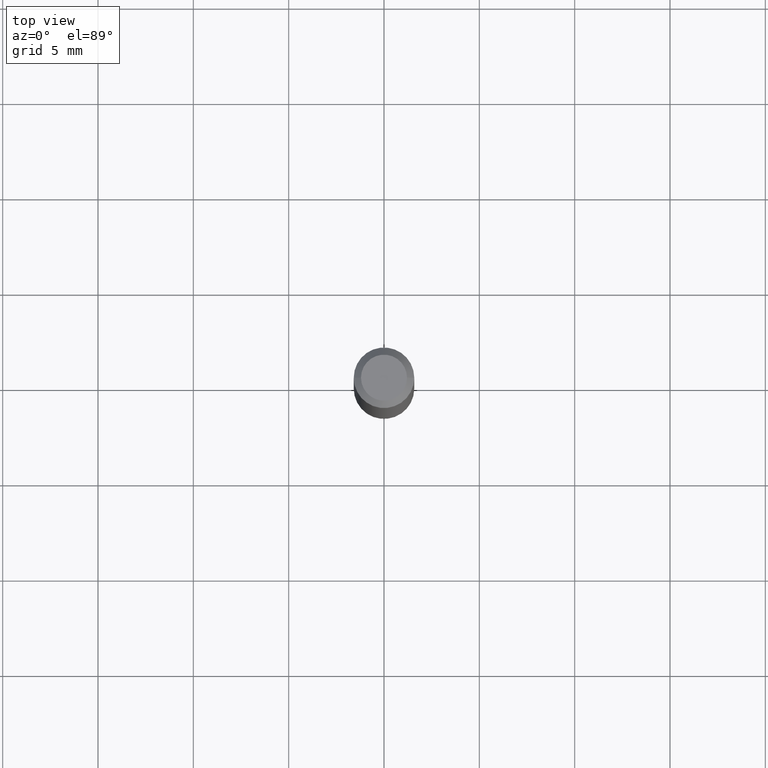
[diagram: clean part render]
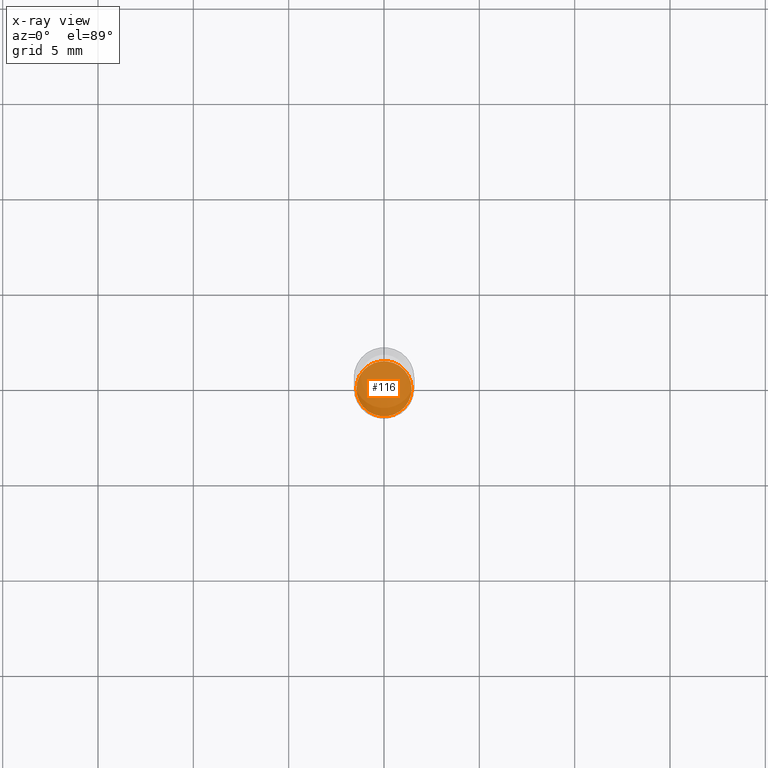
[diagram: x-ray — body ghosted, one internal face saturated and labeled with its STEP entity id]
A machine part, top view, then the same camera in x-ray: the body is ghosted and one INTERNAL B-rep face — a face not visible from any outside direction — is saturated and labeled: STEP entity #116.
In plain terms, the highlighted planar face has unit normal (-0, 0, 1).
Its self-contained STEP definition (entity closure, byte-faithful):
#7 = FACE_OUTER_BOUND ( 'NONE', #159, .T. ) ;
#17 = DIRECTION ( 'NONE',  ( 1.000000000000000000, -6.982962677686265133E-15, 0.000000000000000000 ) ) ;
#42 = DIRECTION ( 'NONE',  ( -2.445468806185136597E-29, 3.491481338843145583E-15, 1.000000000000000000 ) ) ;
#48 = DIRECTION ( 'NONE',  ( -2.438088387897960049E-29, 3.491481338843145188E-15, 1.000000000000000000 ) ) ;
#67 = AXIS2_PLACEMENT_3D ( 'NONE', #445, #187, #17 ) ;
#82 = DIRECTION ( 'NONE',  ( 1.000000000000000000, -6.982962677686265133E-15, 0.000000000000000000 ) ) ;
#116 = ADVANCED_FACE ( 'NONE', ( #7 ), #401, .F. ) ;
#159 = EDGE_LOOP ( 'NONE', ( #193, #211 ) ) ;
#160 = CARTESIAN_POINT ( 'NONE',  ( 0.05700000000000000205, -5.031224609272971289E-15, -1.327000000000000179 ) ) ;
#187 = DIRECTION ( 'NONE',  ( -2.445468806185136597E-29, 3.491481338843145583E-15, 1.000000000000000000 ) ) ;
#193 = ORIENTED_EDGE ( 'NONE', *, *, #454, .F. ) ;
#202 = CIRCLE ( 'NONE', #67, 0.05700000000000000205 ) ;
#211 = ORIENTED_EDGE ( 'NONE', *, *, #334, .F. ) ;
#249 = CARTESIAN_POINT ( 'NONE',  ( 3.245137105807676860E-29, -4.633195736644854276E-15, -1.327000000000000179 ) ) ;
#256 = CIRCLE ( 'NONE', #309, 0.05700000000000000205 ) ;
#279 = VERTEX_POINT ( 'NONE', #160 ) ;
#289 = DIRECTION ( 'NONE',  ( 1.000000000000000000, -6.982962677686265922E-15, 4.876176775795935793E-29 ) ) ;
#309 = AXIS2_PLACEMENT_3D ( 'NONE', #249, #42, #82 ) ;
#322 = CARTESIAN_POINT ( 'NONE',  ( -0.05700000000000000205, -4.225537150087486398E-15, -1.327000000000000179 ) ) ;
#325 = AXIS2_PLACEMENT_3D ( 'NONE', #363, #48, #289 ) ;
#334 = EDGE_CURVE ( 'NONE', #461, #279, #256, .T. ) ;
#363 = CARTESIAN_POINT ( 'NONE',  ( 3.245137105807676860E-29, -4.633195736644854276E-15, -1.327000000000000179 ) ) ;
#401 = PLANE ( 'NONE',  #325 ) ;
#445 = CARTESIAN_POINT ( 'NONE',  ( 3.245137105807676860E-29, -4.633195736644854276E-15, -1.327000000000000179 ) ) ;
#454 = EDGE_CURVE ( 'NONE', #279, #461, #202, .T. ) ;
#461 = VERTEX_POINT ( 'NONE', #322 ) ;